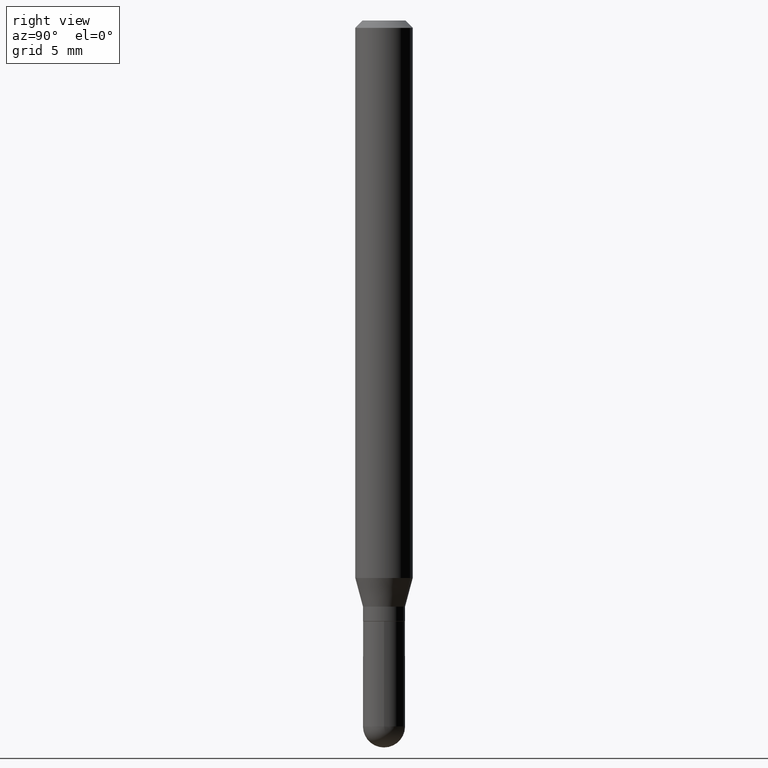
[diagram: clean part render]
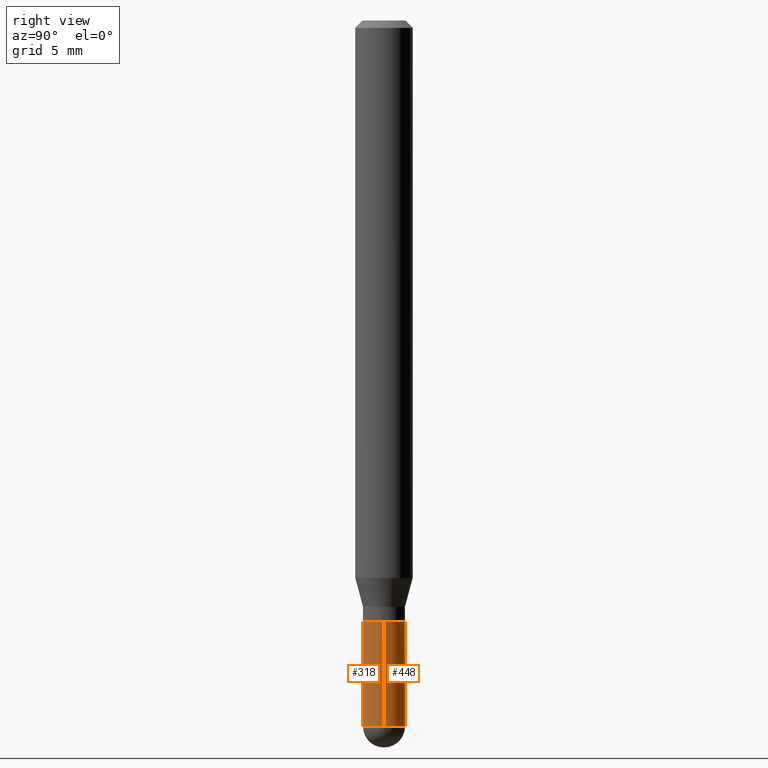
[diagram: same view with one multi-face feature highlighted, each face labeled with its STEP entity id]
A machine part, right view. The highlighted faces form ONE feature: a constant-radius fillet chain: 2 tangent blend faces with common blend radius 1.0998 mm. The faces share edges in the B-rep.
Their STEP definitions:
[1] entity #318 (Cylinder):
#5 = AXIS2_PLACEMENT_3D ( 'NONE', #117, #474, #271 ) ;
#55 = CARTESIAN_POINT ( 'NONE',  ( 0.04329999999999999127, -4.618880663155595580E-15, -1.236299999999999955 ) ) ;
#88 = EDGE_CURVE ( 'NONE', #308, #391, #110, .T. ) ;
#94 = EDGE_CURVE ( 'NONE', #270, #348, #152, .T. ) ;
#110 = LINE ( 'NONE', #207, #176 ) ;
#117 = CARTESIAN_POINT ( 'NONE',  ( 3.023333085086683703E-29, -4.316518379211780118E-15, -1.236299999999999955 ) ) ;
#141 = CARTESIAN_POINT ( 'NONE',  ( -0.04330000000000000515, -4.386806229557427606E-15, -1.452799999999999869 ) ) ;
#152 = CIRCLE ( 'NONE', #343, 0.04330000000000000515 ) ;
#176 = VECTOR ( 'NONE', #253, 39.37007874015748143 ) ;
#184 = DIRECTION ( 'NONE',  ( -2.445468806185136877E-29, 3.491481338843145188E-15, 1.000000000000000000 ) ) ;
#199 = CIRCLE ( 'NONE', #5, 0.04329999999999999127 ) ;
#207 = CARTESIAN_POINT ( 'NONE',  ( 0.04330000000000000515, -3.023622839438154129E-16, 2.111384543919640277E-30 ) ) ;
#213 = CARTESIAN_POINT ( 'NONE',  ( -3.023622839437794704E-16, -0.04330000000000502197, -1.452799999999999647 ) ) ;
#219 = DIRECTION ( 'NONE',  ( 1.000000000000000000, -6.982962677686267499E-15, 0.000000000000000000 ) ) ;
#221 = CARTESIAN_POINT ( 'NONE',  ( 0.04330000000000000515, -4.996833518085365697E-15, -1.452799999999999869 ) ) ;
#224 = AXIS2_PLACEMENT_3D ( 'NONE', #415, #490, #219 ) ;
#253 = DIRECTION ( 'NONE',  ( -2.445468806185136877E-29, 3.491481338843145188E-15, 1.000000000000000000 ) ) ;
#255 = DIRECTION ( 'NONE',  ( 1.000000000000000000, -6.982962677686267499E-15, 4.876176775795935232E-29 ) ) ;
#263 = VERTEX_POINT ( 'NONE', #411 ) ;
#264 = FACE_OUTER_BOUND ( 'NONE', #273, .T. ) ;
#265 = ORIENTED_EDGE ( 'NONE', *, *, #451, .F. ) ;
#270 = VERTEX_POINT ( 'NONE', #141 ) ;
#271 = DIRECTION ( 'NONE',  ( 1.000000000000000000, -6.982962677686269866E-15, 0.000000000000000000 ) ) ;
#273 = EDGE_LOOP ( 'NONE', ( #503, #313, #441, #431, #265 ) ) ;
#293 = DIRECTION ( 'NONE',  ( -2.445468806185136597E-29, 3.491481338843145583E-15, 1.000000000000000000 ) ) ;
#297 = LINE ( 'NONE', #492, #462 ) ;
#308 = VERTEX_POINT ( 'NONE', #221 ) ;
#313 = ORIENTED_EDGE ( 'NONE', *, *, #94, .T. ) ;
#318 = ADVANCED_FACE ( 'NONE', ( #264 ), #336, .T. ) ;
#334 = DIRECTION ( 'NONE',  ( -2.445468806185136597E-29, 3.491481338843145583E-15, 1.000000000000000000 ) ) ;
#336 = CYLINDRICAL_SURFACE ( 'NONE', #344, 0.04330000000000000515 ) ;
#337 = EDGE_CURVE ( 'NONE', #348, #308, #357, .T. ) ;
#343 = AXIS2_PLACEMENT_3D ( 'NONE', #375, #334, #413 ) ;
#344 = AXIS2_PLACEMENT_3D ( 'NONE', #378, #293, #255 ) ;
#348 = VERTEX_POINT ( 'NONE', #213 ) ;
#357 = CIRCLE ( 'NONE', #224, 0.04330000000000000515 ) ;
#375 = CARTESIAN_POINT ( 'NONE',  ( 3.552777081625765848E-29, -5.072424089071321929E-15, -1.452799999999999869 ) ) ;
#378 = CARTESIAN_POINT ( 'NONE',  ( 0.000000000000000000, 0.000000000000000000, 0.000000000000000000 ) ) ;
#391 = VERTEX_POINT ( 'NONE', #55 ) ;
#410 = EDGE_CURVE ( 'NONE', #270, #263, #297, .T. ) ;
#411 = CARTESIAN_POINT ( 'NONE',  ( -0.04329999999999999127, -4.386806229557427606E-15, -1.236299999999999955 ) ) ;
#413 = DIRECTION ( 'NONE',  ( 1.000000000000000000, -6.982962677686267499E-15, 0.000000000000000000 ) ) ;
#415 = CARTESIAN_POINT ( 'NONE',  ( 3.552777081625765848E-29, -5.072424089071321929E-15, -1.452799999999999869 ) ) ;
#431 = ORIENTED_EDGE ( 'NONE', *, *, #88, .T. ) ;
#441 = ORIENTED_EDGE ( 'NONE', *, *, #337, .T. ) ;
#451 = EDGE_CURVE ( 'NONE', #263, #391, #199, .T. ) ;
#462 = VECTOR ( 'NONE', #184, 39.37007874015748143 ) ;
#474 = DIRECTION ( 'NONE',  ( -2.445468806185136597E-29, 3.491481338843145583E-15, 1.000000000000000000 ) ) ;
#490 = DIRECTION ( 'NONE',  ( -2.445468806185136597E-29, 3.491481338843145583E-15, 1.000000000000000000 ) ) ;
#492 = CARTESIAN_POINT ( 'NONE',  ( -0.04330000000000000515, 3.076650045841234171E-16, -2.129898894080374053E-30 ) ) ;
#503 = ORIENTED_EDGE ( 'NONE', *, *, #410, .F. ) ;
[2] entity #448 (Cylinder):
#46 = CARTESIAN_POINT ( 'NONE',  ( 3.023333085086683703E-29, -4.316518379211780118E-15, -1.236299999999999955 ) ) ;
#53 = AXIS2_PLACEMENT_3D ( 'NONE', #46, #383, #96 ) ;
#55 = CARTESIAN_POINT ( 'NONE',  ( 0.04329999999999999127, -4.618880663155595580E-15, -1.236299999999999955 ) ) ;
#74 = CIRCLE ( 'NONE', #144, 0.04330000000000000515 ) ;
#80 = DIRECTION ( 'NONE',  ( -2.445468806185136597E-29, 3.491481338843145583E-15, 1.000000000000000000 ) ) ;
#85 = CYLINDRICAL_SURFACE ( 'NONE', #177, 0.04330000000000000515 ) ;
#88 = EDGE_CURVE ( 'NONE', #308, #391, #110, .T. ) ;
#96 = DIRECTION ( 'NONE',  ( 1.000000000000000000, -6.982962677686269866E-15, 0.000000000000000000 ) ) ;
#97 = CIRCLE ( 'NONE', #403, 0.04330000000000000515 ) ;
#110 = LINE ( 'NONE', #207, #176 ) ;
#133 = EDGE_CURVE ( 'NONE', #308, #384, #97, .T. ) ;
#141 = CARTESIAN_POINT ( 'NONE',  ( -0.04330000000000000515, -4.386806229557427606E-15, -1.452799999999999869 ) ) ;
#144 = AXIS2_PLACEMENT_3D ( 'NONE', #367, #80, #433 ) ;
#145 = ORIENTED_EDGE ( 'NONE', *, *, #88, .F. ) ;
#176 = VECTOR ( 'NONE', #253, 39.37007874015748143 ) ;
#177 = AXIS2_PLACEMENT_3D ( 'NONE', #312, #447, #186 ) ;
#184 = DIRECTION ( 'NONE',  ( -2.445468806185136877E-29, 3.491481338843145188E-15, 1.000000000000000000 ) ) ;
#186 = DIRECTION ( 'NONE',  ( 1.000000000000000000, -6.982962677686267499E-15, 4.876176775795935232E-29 ) ) ;
#207 = CARTESIAN_POINT ( 'NONE',  ( 0.04330000000000000515, -3.023622839438154129E-16, 2.111384543919640277E-30 ) ) ;
#221 = CARTESIAN_POINT ( 'NONE',  ( 0.04330000000000000515, -4.996833518085365697E-15, -1.452799999999999869 ) ) ;
#229 = EDGE_CURVE ( 'NONE', #384, #270, #74, .T. ) ;
#247 = EDGE_CURVE ( 'NONE', #391, #263, #494, .T. ) ;
#253 = DIRECTION ( 'NONE',  ( -2.445468806185136877E-29, 3.491481338843145188E-15, 1.000000000000000000 ) ) ;
#263 = VERTEX_POINT ( 'NONE', #411 ) ;
#270 = VERTEX_POINT ( 'NONE', #141 ) ;
#295 = CARTESIAN_POINT ( 'NONE',  ( 3.552777081625765848E-29, -5.072424089071321929E-15, -1.452799999999999869 ) ) ;
#297 = LINE ( 'NONE', #492, #462 ) ;
#308 = VERTEX_POINT ( 'NONE', #221 ) ;
#312 = CARTESIAN_POINT ( 'NONE',  ( 0.000000000000000000, 0.000000000000000000, 0.000000000000000000 ) ) ;
#314 = ORIENTED_EDGE ( 'NONE', *, *, #229, .T. ) ;
#330 = DIRECTION ( 'NONE',  ( 1.000000000000000000, -6.982962677686267499E-15, 0.000000000000000000 ) ) ;
#341 = ORIENTED_EDGE ( 'NONE', *, *, #410, .T. ) ;
#355 = ORIENTED_EDGE ( 'NONE', *, *, #133, .T. ) ;
#367 = CARTESIAN_POINT ( 'NONE',  ( 3.552777081625765848E-29, -5.072424089071321929E-15, -1.452799999999999869 ) ) ;
#383 = DIRECTION ( 'NONE',  ( -2.445468806185136597E-29, 3.491481338843145583E-15, 1.000000000000000000 ) ) ;
#384 = VERTEX_POINT ( 'NONE', #419 ) ;
#391 = VERTEX_POINT ( 'NONE', #55 ) ;
#392 = FACE_OUTER_BOUND ( 'NONE', #464, .T. ) ;
#403 = AXIS2_PLACEMENT_3D ( 'NONE', #295, #489, #330 ) ;
#410 = EDGE_CURVE ( 'NONE', #270, #263, #297, .T. ) ;
#411 = CARTESIAN_POINT ( 'NONE',  ( -0.04329999999999999127, -4.386806229557427606E-15, -1.236299999999999955 ) ) ;
#419 = CARTESIAN_POINT ( 'NONE',  ( 3.076650045841584721E-16, 0.04329999999999488425, -1.452800000000000091 ) ) ;
#432 = ORIENTED_EDGE ( 'NONE', *, *, #247, .F. ) ;
#433 = DIRECTION ( 'NONE',  ( 1.000000000000000000, -6.982962677686267499E-15, 0.000000000000000000 ) ) ;
#447 = DIRECTION ( 'NONE',  ( -2.445468806185136597E-29, 3.491481338843145583E-15, 1.000000000000000000 ) ) ;
#448 = ADVANCED_FACE ( 'NONE', ( #392 ), #85, .T. ) ;
#462 = VECTOR ( 'NONE', #184, 39.37007874015748143 ) ;
#464 = EDGE_LOOP ( 'NONE', ( #314, #341, #432, #145, #355 ) ) ;
#489 = DIRECTION ( 'NONE',  ( -2.445468806185136597E-29, 3.491481338843145583E-15, 1.000000000000000000 ) ) ;
#492 = CARTESIAN_POINT ( 'NONE',  ( -0.04330000000000000515, 3.076650045841234171E-16, -2.129898894080374053E-30 ) ) ;
#494 = CIRCLE ( 'NONE', #53, 0.04329999999999999127 ) ;